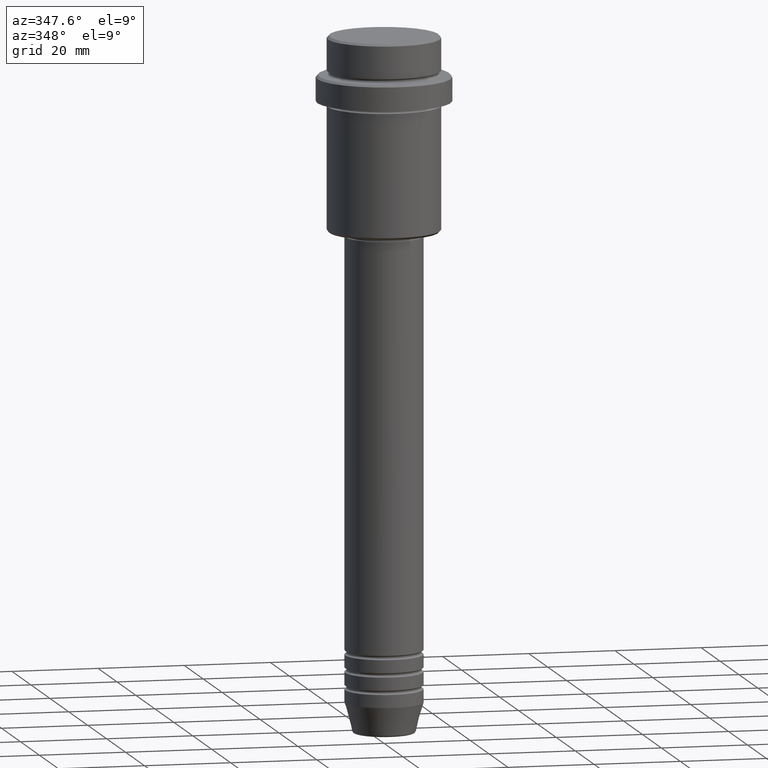
[diagram: clean part render]
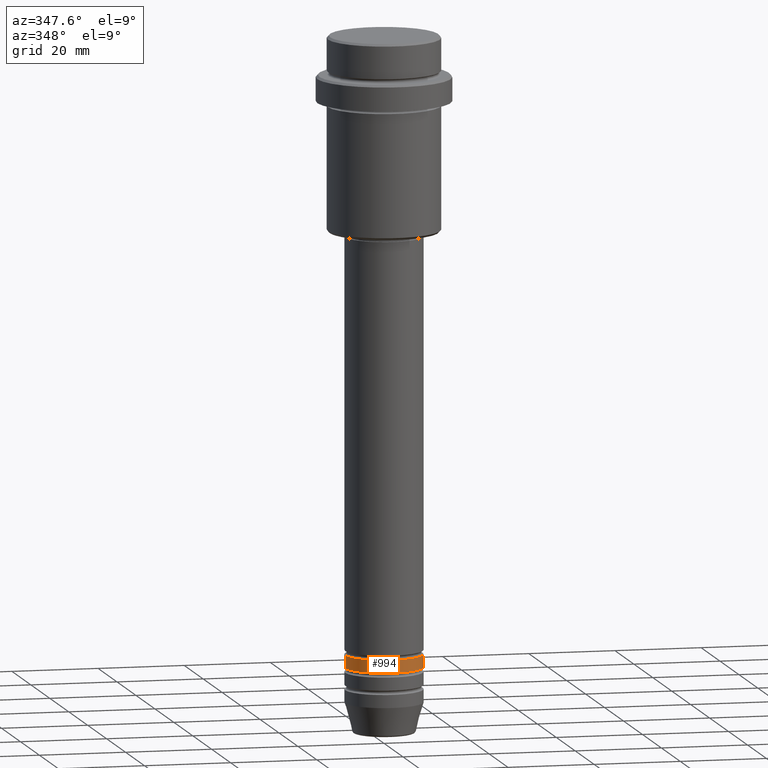
[diagram: same view with one face highlighted and labeled with its STEP entity id]
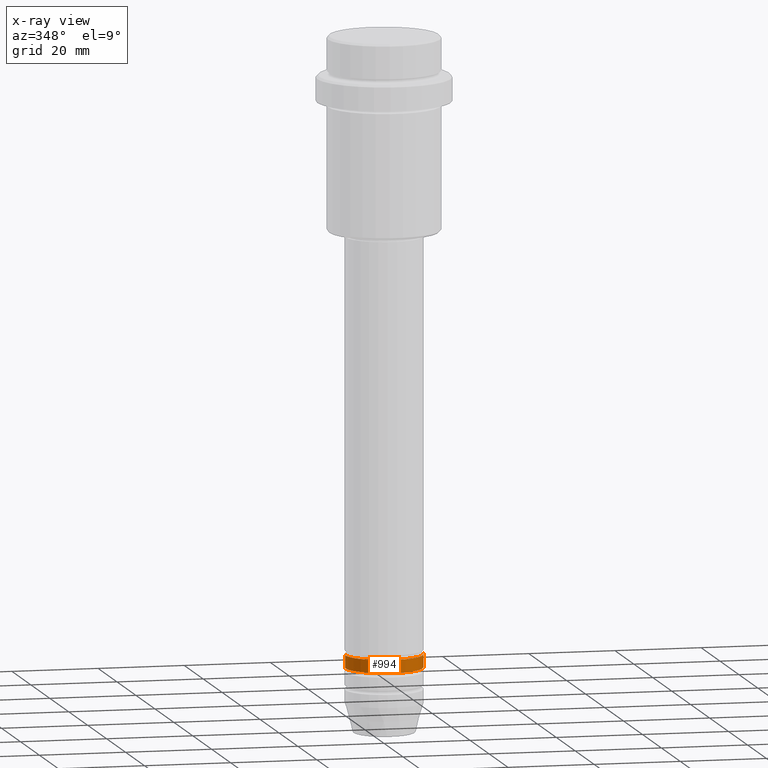
[diagram: x-ray of the same camera — body ghosted, the highlighted face saturated]
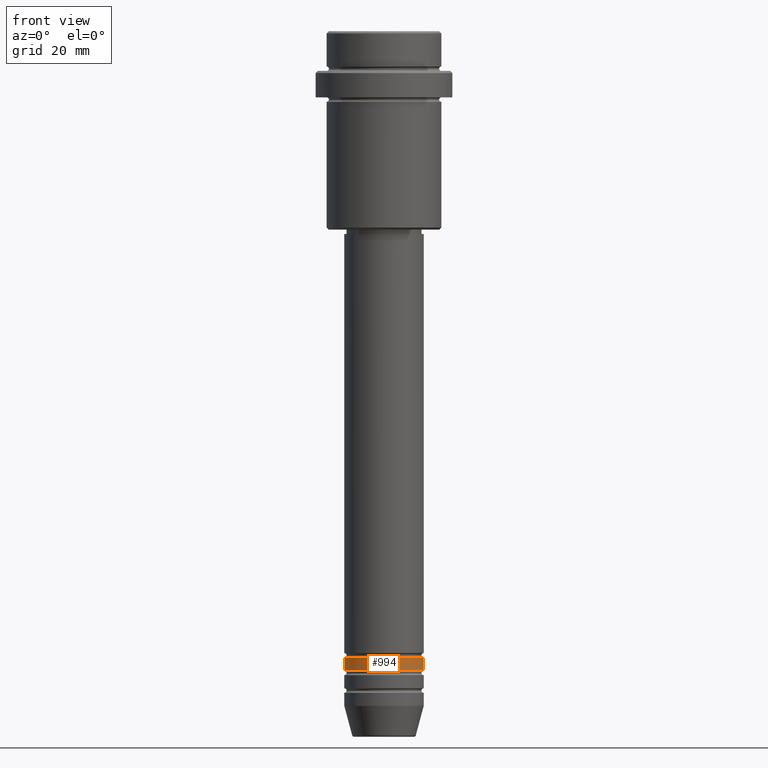
[diagram: same view with one face highlighted and labeled with its STEP entity id]
A machine part, auxiliary view. The second image highlights one B-rep face of the part: STEP entity #994.
The next image is the same camera in x-ray: the body ghosted, the highlighted face saturated — about 0% of this face is hidden behind the body in this view.
A second angle (front view) of the same face is appended — the face is thin or edge-on in the first view.
In plain terms, the highlighted cylindrical surface (partial cylindrical patch) has radius 9 mm, axis along (-0, -0, 1).
Its self-contained STEP definition (entity closure, byte-faithful):
#37 = VECTOR ( 'NONE', #1072, 1000.000000000000000 ) ;
#85 = CARTESIAN_POINT ( 'NONE',  ( 0.000000000000000000, 0.000000000000000000, 0.000000000000000000 ) ) ;
#90 = CARTESIAN_POINT ( 'NONE',  ( 9.000000000000000000, 0.000000000000000000, 0.000000000000000000 ) ) ;
#191 = CARTESIAN_POINT ( 'NONE',  ( 9.000000000000000000, 0.000000000000000000, -141.9999999999999147 ) ) ;
#208 = DIRECTION ( 'NONE',  ( 1.000000000000000000, 0.000000000000000000, 0.000000000000000000 ) ) ;
#316 = DIRECTION ( 'NONE',  ( -0.000000000000000000, -0.000000000000000000, 1.000000000000000000 ) ) ;
#400 = VERTEX_POINT ( 'NONE', #852 ) ;
#404 = DIRECTION ( 'NONE',  ( 1.000000000000000000, 0.000000000000000000, 0.000000000000000000 ) ) ;
#416 = LINE ( 'NONE', #90, #1106 ) ;
#425 = AXIS2_PLACEMENT_3D ( 'NONE', #85, #1392, #208 ) ;
#504 = EDGE_CURVE ( 'NONE', #1389, #400, #1274, .T. ) ;
#523 = DIRECTION ( 'NONE',  ( -0.000000000000000000, -0.000000000000000000, 1.000000000000000000 ) ) ;
#565 = AXIS2_PLACEMENT_3D ( 'NONE', #613, #937, #404 ) ;
#609 = EDGE_CURVE ( 'NONE', #1049, #981, #416, .T. ) ;
#613 = CARTESIAN_POINT ( 'NONE',  ( 0.000000000000000000, 0.000000000000000000, -144.9999999999999147 ) ) ;
#638 = ORIENTED_EDGE ( 'NONE', *, *, #959, .F. ) ;
#796 = ORIENTED_EDGE ( 'NONE', *, *, #504, .F. ) ;
#797 = ORIENTED_EDGE ( 'NONE', *, *, #609, .T. ) ;
#810 = AXIS2_PLACEMENT_3D ( 'NONE', #949, #316, #1186 ) ;
#852 = CARTESIAN_POINT ( 'NONE',  ( -9.000000000000000000, 1.102182119232617714E-15, -141.9999999999999147 ) ) ;
#858 = CYLINDRICAL_SURFACE ( 'NONE', #425, 9.000000000000000000 ) ;
#882 = CIRCLE ( 'NONE', #810, 9.000000000000000000 ) ;
#934 = CIRCLE ( 'NONE', #565, 9.000000000000000000 ) ;
#937 = DIRECTION ( 'NONE',  ( -0.000000000000000000, -0.000000000000000000, 1.000000000000000000 ) ) ;
#944 = EDGE_LOOP ( 'NONE', ( #796, #1271, #797, #638 ) ) ;
#949 = CARTESIAN_POINT ( 'NONE',  ( 0.000000000000000000, 0.000000000000000000, -141.9999999999999147 ) ) ;
#959 = EDGE_CURVE ( 'NONE', #400, #981, #882, .T. ) ;
#969 = CARTESIAN_POINT ( 'NONE',  ( 9.000000000000000000, 0.000000000000000000, -144.9999999999999147 ) ) ;
#981 = VERTEX_POINT ( 'NONE', #191 ) ;
#994 = ADVANCED_FACE ( 'NONE', ( #1068 ), #858, .T. ) ;
#1049 = VERTEX_POINT ( 'NONE', #969 ) ;
#1050 = CARTESIAN_POINT ( 'NONE',  ( -9.000000000000000000, 1.102182119232617714E-15, -144.9999999999999147 ) ) ;
#1068 = FACE_OUTER_BOUND ( 'NONE', #944, .T. ) ;
#1072 = DIRECTION ( 'NONE',  ( -0.000000000000000000, -0.000000000000000000, 1.000000000000000000 ) ) ;
#1106 = VECTOR ( 'NONE', #523, 1000.000000000000000 ) ;
#1186 = DIRECTION ( 'NONE',  ( 1.000000000000000000, 0.000000000000000000, 0.000000000000000000 ) ) ;
#1205 = CARTESIAN_POINT ( 'NONE',  ( -9.000000000000000000, 1.102182119232617714E-15, 0.000000000000000000 ) ) ;
#1271 = ORIENTED_EDGE ( 'NONE', *, *, #1354, .T. ) ;
#1274 = LINE ( 'NONE', #1205, #37 ) ;
#1354 = EDGE_CURVE ( 'NONE', #1389, #1049, #934, .T. ) ;
#1389 = VERTEX_POINT ( 'NONE', #1050 ) ;
#1392 = DIRECTION ( 'NONE',  ( -0.000000000000000000, -0.000000000000000000, 1.000000000000000000 ) ) ;